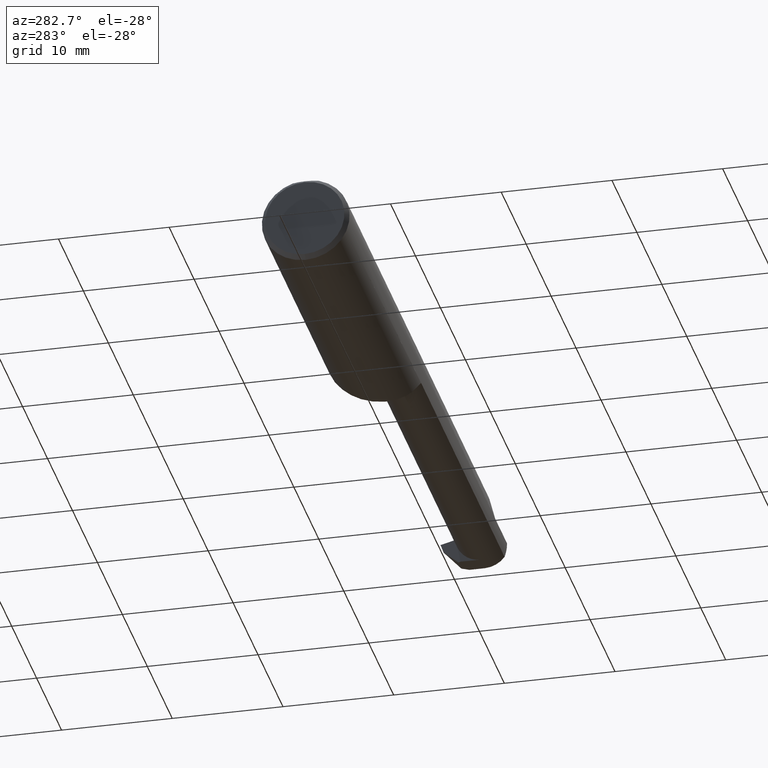
[diagram: clean part render]
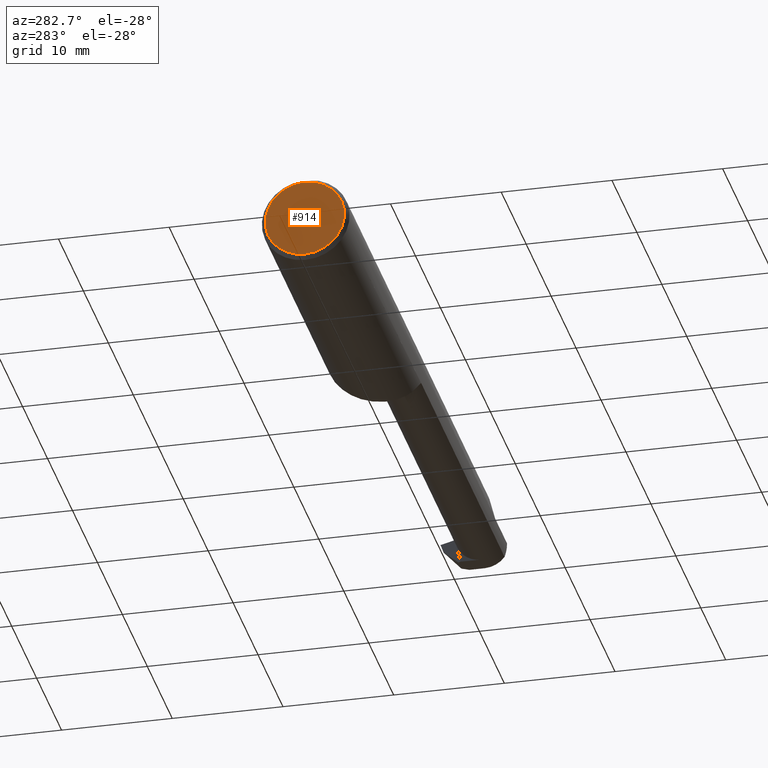
[diagram: same view with one face highlighted and labeled with its STEP entity id]
A machine part, auxiliary view. The second image highlights one B-rep face of the part: STEP entity #914.
In plain terms, the highlighted planar face has unit normal (1, 0, 0).
Its self-contained STEP definition (entity closure, byte-faithful):
#137 = EDGE_CURVE ( 'NONE', #849, #434, #690, .T. ) ;
#213 = CARTESIAN_POINT ( 'NONE',  ( 0.000000000000000000, 1.819825143532983112E-17, 0.1411000000000000310 ) ) ;
#223 = AXIS2_PLACEMENT_3D ( 'NONE', #225, #310, #478 ) ;
#225 = CARTESIAN_POINT ( 'NONE',  ( 0.000000000000000000, 0.000000000000000000, 0.000000000000000000 ) ) ;
#238 = CARTESIAN_POINT ( 'NONE',  ( 0.000000000000000000, 0.000000000000000000, 0.000000000000000000 ) ) ;
#240 = ORIENTED_EDGE ( 'NONE', *, *, #972, .T. ) ;
#310 = DIRECTION ( 'NONE',  ( -1.000000000000000000, -0.000000000000000000, -0.000000000000000000 ) ) ;
#329 = DIRECTION ( 'NONE',  ( 0.000000000000000000, 0.000000000000000000, -1.000000000000000000 ) ) ;
#367 = DIRECTION ( 'NONE',  ( 1.000000000000000000, 0.000000000000000000, 0.000000000000000000 ) ) ;
#379 = FACE_OUTER_BOUND ( 'NONE', #929, .T. ) ;
#417 = AXIS2_PLACEMENT_3D ( 'NONE', #853, #367, #468 ) ;
#420 = DIRECTION ( 'NONE',  ( -1.000000000000000000, -0.000000000000000000, -0.000000000000000000 ) ) ;
#434 = VERTEX_POINT ( 'NONE', #620 ) ;
#468 = DIRECTION ( 'NONE',  ( 0.000000000000000000, 0.000000000000000000, -1.000000000000000000 ) ) ;
#478 = DIRECTION ( 'NONE',  ( 0.000000000000000000, 0.000000000000000000, -1.000000000000000000 ) ) ;
#524 = PLANE ( 'NONE',  #417 ) ;
#620 = CARTESIAN_POINT ( 'NONE',  ( 0.000000000000000000, 0.000000000000000000, -0.1411000000000000310 ) ) ;
#690 = CIRCLE ( 'NONE', #1007, 0.1411000000000000310 ) ;
#829 = ORIENTED_EDGE ( 'NONE', *, *, #137, .T. ) ;
#849 = VERTEX_POINT ( 'NONE', #213 ) ;
#853 = CARTESIAN_POINT ( 'NONE',  ( 0.000000000000000000, 0.000000000000000000, 0.000000000000000000 ) ) ;
#857 = CIRCLE ( 'NONE', #223, 0.1411000000000000310 ) ;
#914 = ADVANCED_FACE ( 'NONE', ( #379 ), #524, .F. ) ;
#929 = EDGE_LOOP ( 'NONE', ( #240, #829 ) ) ;
#972 = EDGE_CURVE ( 'NONE', #434, #849, #857, .T. ) ;
#1007 = AXIS2_PLACEMENT_3D ( 'NONE', #238, #420, #329 ) ;